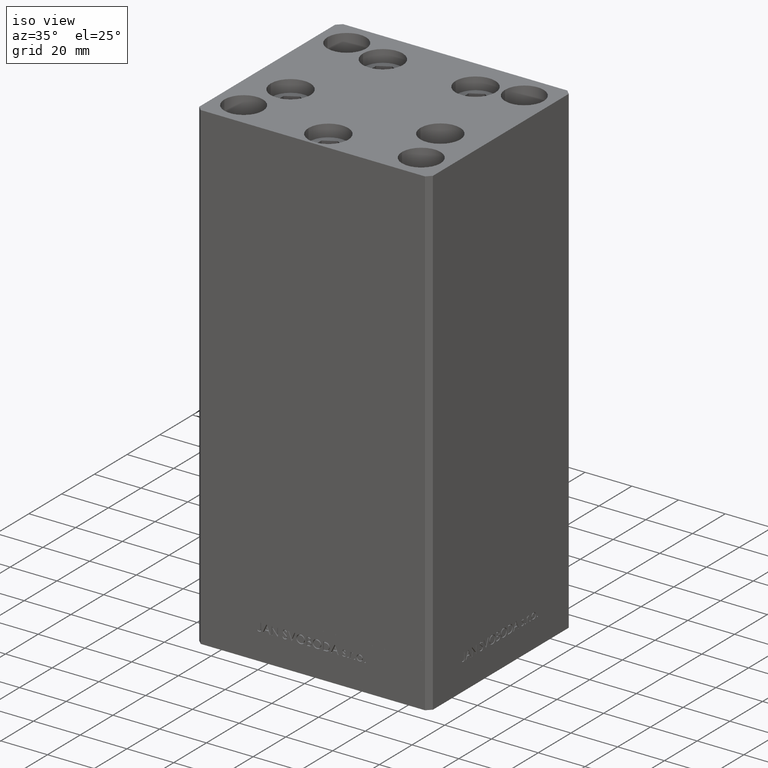
[diagram: clean part render]
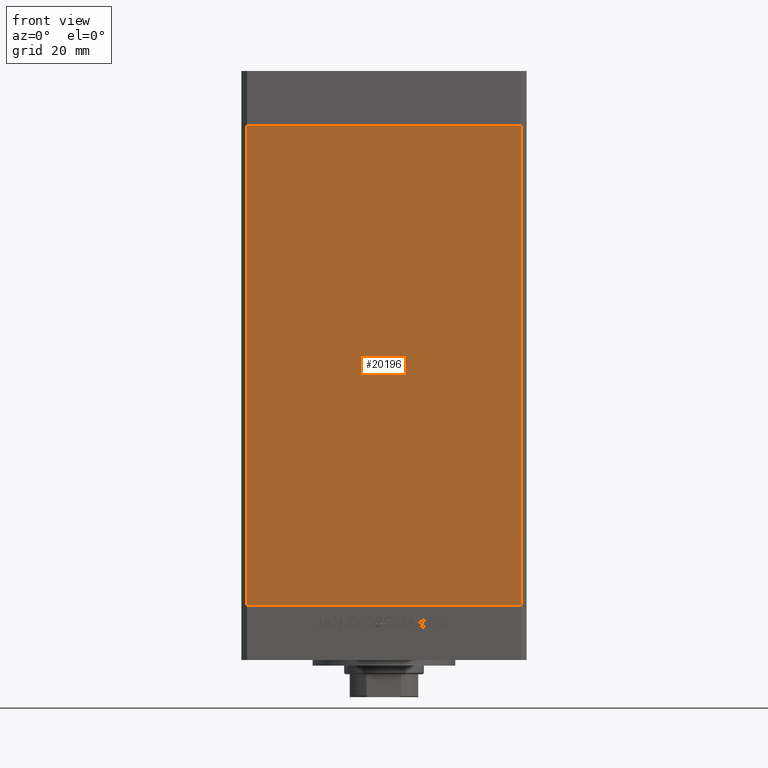
[diagram: tour spotlight — one face highlighted and labeled with its STEP entity id]
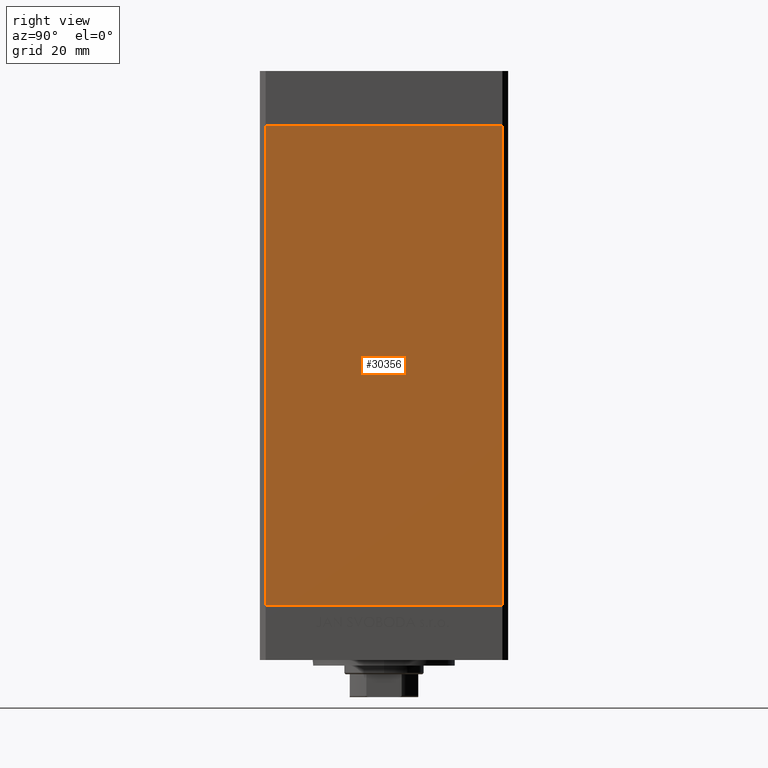
[diagram: tour spotlight — one face highlighted and labeled with its STEP entity id]
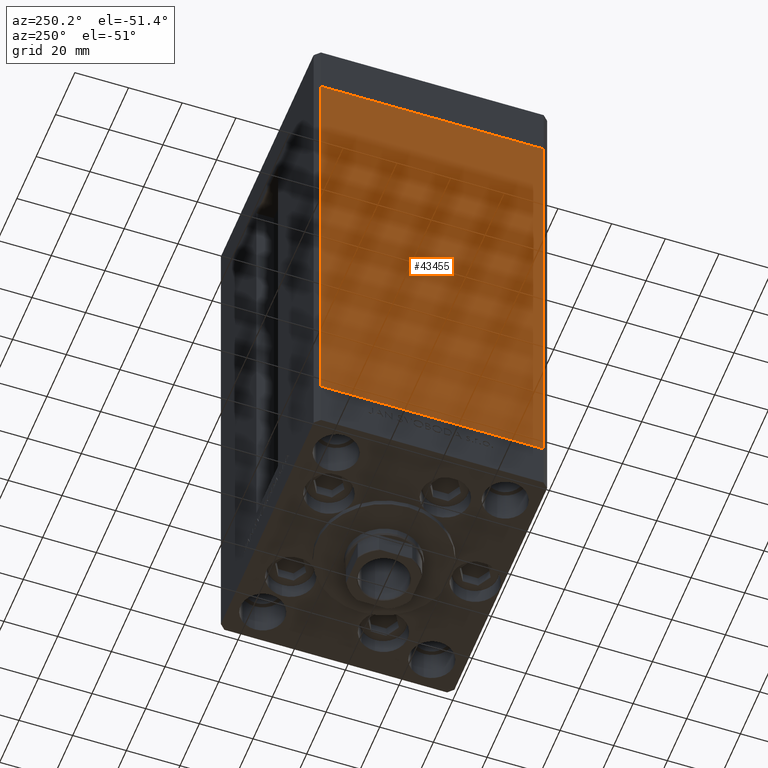
[diagram: tour spotlight — one face highlighted and labeled with its STEP entity id]
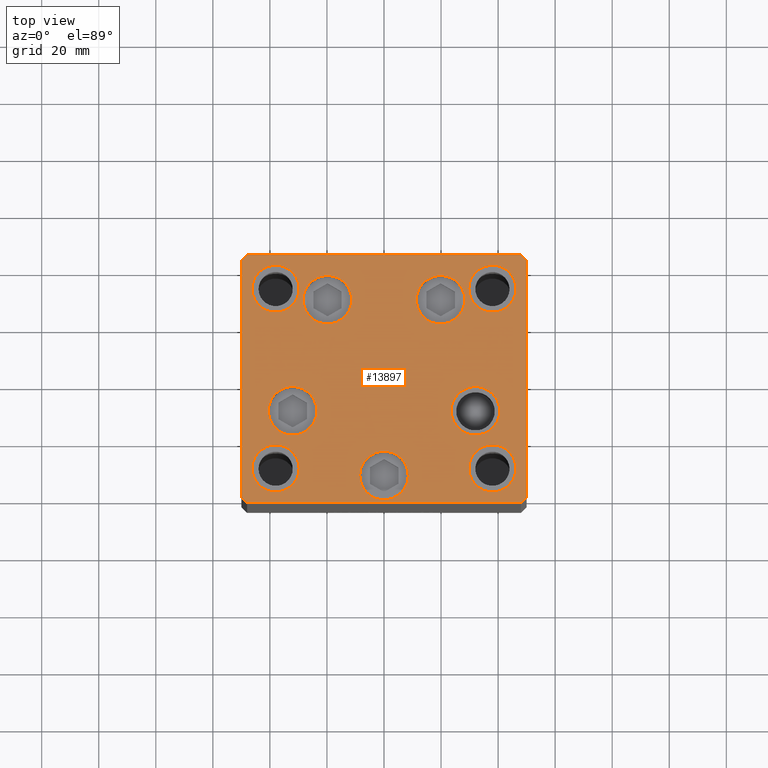
[diagram: tour spotlight — one face highlighted and labeled with its STEP entity id]
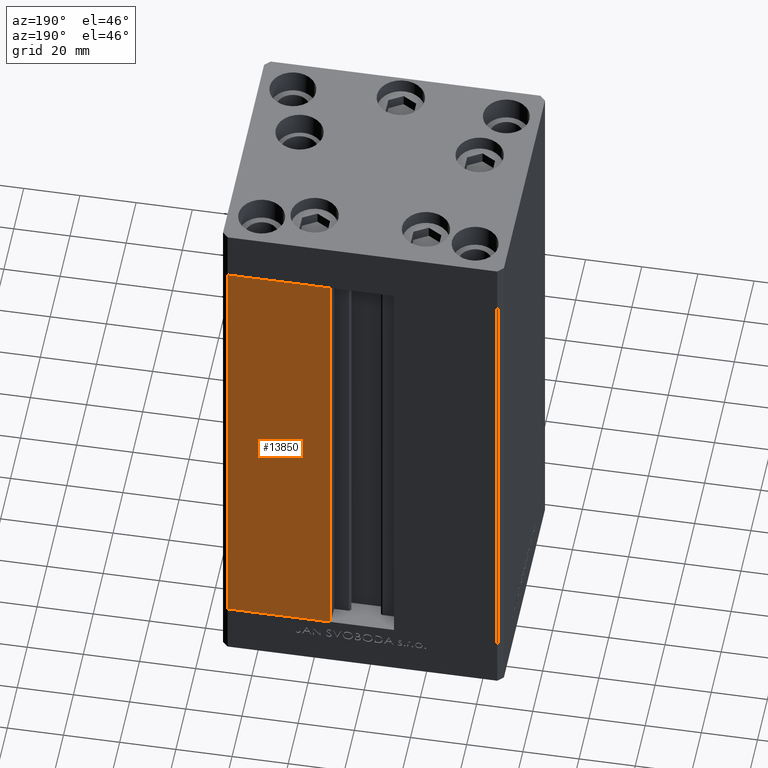
[diagram: tour spotlight — one face highlighted and labeled with its STEP entity id]
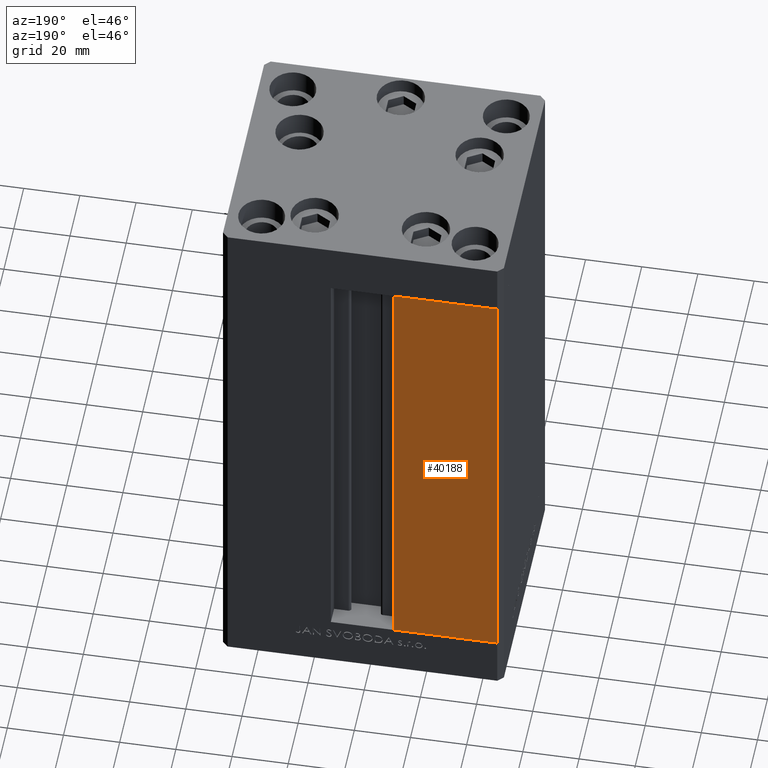
[diagram: tour spotlight — one face highlighted and labeled with its STEP entity id]
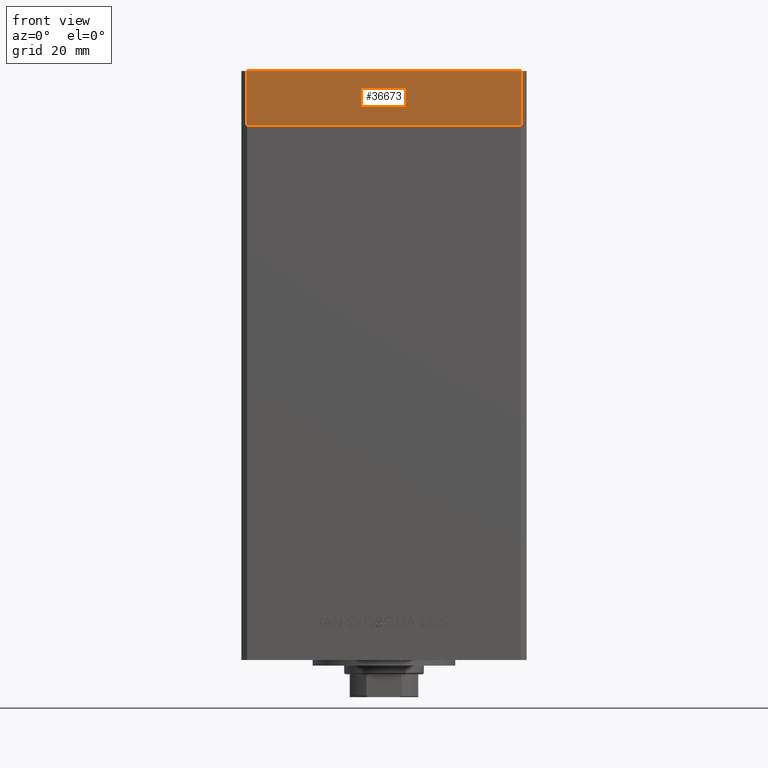
[diagram: tour spotlight — one face highlighted and labeled with its STEP entity id]
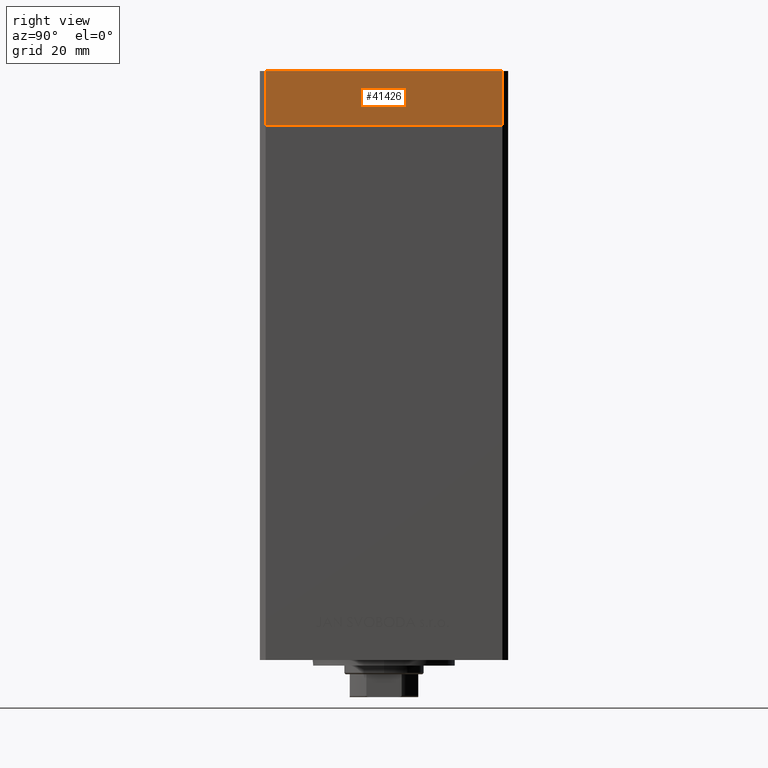
[diagram: tour spotlight — one face highlighted and labeled with its STEP entity id]
A machine part: a face-by-face anatomy tour. The part has 1164 B-rep faces; the first image is the clean iso view, then the 8 largest visible faces are spotlighted one at a time (largest first), each with its STEP entity span.

Face 1 — front view, entity #20196. In plain terms, the highlighted planar face has unit normal (0, 1, 0).
Definition (entity closure, byte-faithful):
#523 = CARTESIAN_POINT ( 'NONE',  ( -47.99999999999998579, -43.50000000000000000, 168.5000000000000000 ) ) ;
#609 = EDGE_CURVE ( 'NONE', #43587, #37930, #47816, .T. ) ;
#1003 = VECTOR ( 'NONE', #24720, 1000.000000000000000 ) ;
#2142 = CARTESIAN_POINT ( 'NONE',  ( -47.99999999999998579, -43.50000000000000000, 0.000000000000000000 ) ) ;
#4017 = DIRECTION ( 'NONE',  ( 1.000000000000000000, 0.000000000000000000, 0.000000000000000000 ) ) ;
#6775 = FACE_OUTER_BOUND ( 'NONE', #27543, .T. ) ;
#10970 = ORIENTED_EDGE ( 'NONE', *, *, #33616, .T. ) ;
#11225 = CARTESIAN_POINT ( 'NONE',  ( -47.99999999999998579, -43.50000000000000000, 168.5000000000000000 ) ) ;
#11700 = EDGE_CURVE ( 'NONE', #20813, #47953, #26405, .T. ) ;
#12907 = CARTESIAN_POINT ( 'NONE',  ( 47.99999999999998579, -43.50000000000000000, 168.5000000000000000 ) ) ;
#16608 = VECTOR ( 'NONE', #25529, 1000.000000000000000 ) ;
#16834 = ORIENTED_EDGE ( 'NONE', *, *, #609, .F. ) ;
#20196 = ADVANCED_FACE ( 'NONE', ( #6775 ), #48785, .F. ) ;
#20813 = VERTEX_POINT ( 'NONE', #38221 ) ;
#23930 = VECTOR ( 'NONE', #4017, 1000.000000000000000 ) ;
#24720 = DIRECTION ( 'NONE',  ( -0.000000000000000000, -0.000000000000000000, -1.000000000000000000 ) ) ;
#25529 = DIRECTION ( 'NONE',  ( 1.000000000000000000, 0.000000000000000000, 0.000000000000000000 ) ) ;
#26405 = LINE ( 'NONE', #45526, #31438 ) ;
#27543 = EDGE_LOOP ( 'NONE', ( #10970, #16834, #35556, #31332 ) ) ;
#29760 = AXIS2_PLACEMENT_3D ( 'NONE', #11225, #33151, #37127 ) ;
#31332 = ORIENTED_EDGE ( 'NONE', *, *, #11700, .T. ) ;
#31438 = VECTOR ( 'NONE', #45044, 1000.000000000000000 ) ;
#32241 = LINE ( 'NONE', #2142, #16608 ) ;
#32662 = CARTESIAN_POINT ( 'NONE',  ( 47.99999999999998579, -43.50000000000000000, 168.5000000000000000 ) ) ;
#33151 = DIRECTION ( 'NONE',  ( 0.000000000000000000, 1.000000000000000000, 0.000000000000000000 ) ) ;
#33616 = EDGE_CURVE ( 'NONE', #47953, #37930, #32241, .T. ) ;
#35556 = ORIENTED_EDGE ( 'NONE', *, *, #40240, .F. ) ;
#37127 = DIRECTION ( 'NONE',  ( 0.000000000000000000, -0.000000000000000000, 1.000000000000000000 ) ) ;
#37930 = VERTEX_POINT ( 'NONE', #37949 ) ;
#37949 = CARTESIAN_POINT ( 'NONE',  ( 47.99999999999998579, -43.50000000000000000, 0.000000000000000000 ) ) ;
#38221 = CARTESIAN_POINT ( 'NONE',  ( -47.99999999999998579, -43.50000000000000000, 168.5000000000000000 ) ) ;
#38336 = CARTESIAN_POINT ( 'NONE',  ( -47.99999999999998579, -43.50000000000000000, 0.000000000000000000 ) ) ;
#40240 = EDGE_CURVE ( 'NONE', #20813, #43587, #45300, .T. ) ;
#43587 = VERTEX_POINT ( 'NONE', #12907 ) ;
#45044 = DIRECTION ( 'NONE',  ( -0.000000000000000000, -0.000000000000000000, -1.000000000000000000 ) ) ;
#45300 = LINE ( 'NONE', #523, #23930 ) ;
#45526 = CARTESIAN_POINT ( 'NONE',  ( -47.99999999999998579, -43.50000000000000000, 168.5000000000000000 ) ) ;
#47816 = LINE ( 'NONE', #32662, #1003 ) ;
#47953 = VERTEX_POINT ( 'NONE', #38336 ) ;
#48785 = PLANE ( 'NONE',  #29760 ) ;

Face 2 — right view, entity #30356. In plain terms, the highlighted planar face has unit normal (1, -0, 0).
Definition (entity closure, byte-faithful):
#678 = DIRECTION ( 'NONE',  ( -3.344045254895050973E-16, -1.000000000000000000, 0.000000000000000000 ) ) ;
#1245 = ORIENTED_EDGE ( 'NONE', *, *, #46474, .F. ) ;
#1932 = VECTOR ( 'NONE', #32266, 1000.000000000000000 ) ;
#3344 = LINE ( 'NONE', #18522, #38434 ) ;
#3359 = EDGE_CURVE ( 'NONE', #24925, #27620, #3344, .T. ) ;
#3855 = DIRECTION ( 'NONE',  ( 3.344045254895050973E-16, 1.000000000000000000, 0.000000000000000000 ) ) ;
#4100 = CARTESIAN_POINT ( 'NONE',  ( 50.00000000000001421, 41.49999999999999289, 168.5000000000000000 ) ) ;
#4712 = VECTOR ( 'NONE', #678, 1000.000000000000000 ) ;
#5897 = CARTESIAN_POINT ( 'NONE',  ( 50.00000000000001421, 41.49999999999999289, 0.000000000000000000 ) ) ;
#7913 = EDGE_CURVE ( 'NONE', #12113, #27620, #39224, .T. ) ;
#8588 = LINE ( 'NONE', #23056, #43345 ) ;
#12113 = VERTEX_POINT ( 'NONE', #25561 ) ;
#14766 = VERTEX_POINT ( 'NONE', #41455 ) ;
#15561 = CARTESIAN_POINT ( 'NONE',  ( 49.99999999999998579, -41.49999999999999289, 0.000000000000000000 ) ) ;
#18522 = CARTESIAN_POINT ( 'NONE',  ( 49.99999999999998579, -41.49999999999999289, 168.5000000000000000 ) ) ;
#18792 = PLANE ( 'NONE',  #42768 ) ;
#19348 = LINE ( 'NONE', #34028, #4712 ) ;
#22061 = EDGE_LOOP ( 'NONE', ( #41025, #1245, #27404, #43865 ) ) ;
#23056 = CARTESIAN_POINT ( 'NONE',  ( 50.00000000000001421, 41.49999999999999289, 168.5000000000000000 ) ) ;
#24925 = VERTEX_POINT ( 'NONE', #33565 ) ;
#25561 = CARTESIAN_POINT ( 'NONE',  ( 50.00000000000001421, 41.49999999999999289, 0.000000000000000000 ) ) ;
#26503 = DIRECTION ( 'NONE',  ( 1.000000000000000000, -3.344045254895050973E-16, 0.000000000000000000 ) ) ;
#27404 = ORIENTED_EDGE ( 'NONE', *, *, #34745, .T. ) ;
#27620 = VERTEX_POINT ( 'NONE', #15561 ) ;
#30356 = ADVANCED_FACE ( 'NONE', ( #41651 ), #18792, .T. ) ;
#30991 = DIRECTION ( 'NONE',  ( -0.000000000000000000, -0.000000000000000000, -1.000000000000000000 ) ) ;
#32266 = DIRECTION ( 'NONE',  ( -3.344045254895050973E-16, -1.000000000000000000, 0.000000000000000000 ) ) ;
#33565 = CARTESIAN_POINT ( 'NONE',  ( 49.99999999999998579, -41.49999999999999289, 168.5000000000000000 ) ) ;
#34028 = CARTESIAN_POINT ( 'NONE',  ( 50.00000000000001421, 41.49999999999999289, 168.5000000000000000 ) ) ;
#34745 = EDGE_CURVE ( 'NONE', #14766, #24925, #19348, .T. ) ;
#38434 = VECTOR ( 'NONE', #47935, 1000.000000000000000 ) ;
#39224 = LINE ( 'NONE', #5897, #1932 ) ;
#41025 = ORIENTED_EDGE ( 'NONE', *, *, #7913, .F. ) ;
#41455 = CARTESIAN_POINT ( 'NONE',  ( 50.00000000000001421, 41.49999999999999289, 168.5000000000000000 ) ) ;
#41651 = FACE_OUTER_BOUND ( 'NONE', #22061, .T. ) ;
#42768 = AXIS2_PLACEMENT_3D ( 'NONE', #4100, #26503, #3855 ) ;
#43345 = VECTOR ( 'NONE', #30991, 1000.000000000000000 ) ;
#43865 = ORIENTED_EDGE ( 'NONE', *, *, #3359, .T. ) ;
#46474 = EDGE_CURVE ( 'NONE', #14766, #12113, #8588, .T. ) ;
#47935 = DIRECTION ( 'NONE',  ( -0.000000000000000000, -0.000000000000000000, -1.000000000000000000 ) ) ;

Face 3 — auxiliary view, entity #43455. In plain terms, the highlighted planar face has unit normal (1, 0, 0).
Definition (entity closure, byte-faithful):
#1145 = CARTESIAN_POINT ( 'NONE',  ( -50.00000000000001421, 41.49999999999999289, 168.5000000000000000 ) ) ;
#2916 = EDGE_CURVE ( 'NONE', #30149, #10781, #37295, .T. ) ;
#3449 = EDGE_CURVE ( 'NONE', #28960, #45384, #26487, .T. ) ;
#3845 = DIRECTION ( 'NONE',  ( 3.344045254895050973E-16, -1.000000000000000000, 0.000000000000000000 ) ) ;
#9721 = CARTESIAN_POINT ( 'NONE',  ( -50.00000000000001421, 41.49999999999999289, 168.5000000000000000 ) ) ;
#10624 = VECTOR ( 'NONE', #17911, 1000.000000000000000 ) ;
#10781 = VERTEX_POINT ( 'NONE', #44549 ) ;
#13700 = DIRECTION ( 'NONE',  ( -0.000000000000000000, -0.000000000000000000, -1.000000000000000000 ) ) ;
#14527 = CARTESIAN_POINT ( 'NONE',  ( -49.99999999999998579, -41.49999999999999289, 0.000000000000000000 ) ) ;
#14758 = DIRECTION ( 'NONE',  ( 1.000000000000000000, 3.344045254895050973E-16, -0.000000000000000000 ) ) ;
#15449 = CARTESIAN_POINT ( 'NONE',  ( -50.00000000000001421, 41.49999999999999289, 0.000000000000000000 ) ) ;
#17911 = DIRECTION ( 'NONE',  ( 3.344045254895050973E-16, -1.000000000000000000, 0.000000000000000000 ) ) ;
#18217 = VECTOR ( 'NONE', #28156, 1000.000000000000000 ) ;
#18393 = CARTESIAN_POINT ( 'NONE',  ( -50.00000000000001421, 41.49999999999999289, 168.5000000000000000 ) ) ;
#19366 = ORIENTED_EDGE ( 'NONE', *, *, #2916, .F. ) ;
#20865 = AXIS2_PLACEMENT_3D ( 'NONE', #22483, #14758, #29949 ) ;
#21191 = LINE ( 'NONE', #9721, #18217 ) ;
#22476 = VECTOR ( 'NONE', #3845, 1000.000000000000000 ) ;
#22483 = CARTESIAN_POINT ( 'NONE',  ( -50.00000000000001421, 41.49999999999999289, 168.5000000000000000 ) ) ;
#22594 = ORIENTED_EDGE ( 'NONE', *, *, #31763, .F. ) ;
#26487 = LINE ( 'NONE', #37916, #22476 ) ;
#28156 = DIRECTION ( 'NONE',  ( -0.000000000000000000, -0.000000000000000000, -1.000000000000000000 ) ) ;
#28530 = ORIENTED_EDGE ( 'NONE', *, *, #34187, .T. ) ;
#28661 = CARTESIAN_POINT ( 'NONE',  ( -49.99999999999998579, -41.49999999999999289, 168.5000000000000000 ) ) ;
#28960 = VERTEX_POINT ( 'NONE', #15449 ) ;
#29265 = VECTOR ( 'NONE', #13700, 1000.000000000000000 ) ;
#29949 = DIRECTION ( 'NONE',  ( -3.344045254895050973E-16, 1.000000000000000000, 0.000000000000000000 ) ) ;
#30149 = VERTEX_POINT ( 'NONE', #1145 ) ;
#31763 = EDGE_CURVE ( 'NONE', #10781, #45384, #44055, .T. ) ;
#34187 = EDGE_CURVE ( 'NONE', #30149, #28960, #21191, .T. ) ;
#37295 = LINE ( 'NONE', #18393, #10624 ) ;
#37638 = FACE_OUTER_BOUND ( 'NONE', #44845, .T. ) ;
#37916 = CARTESIAN_POINT ( 'NONE',  ( -50.00000000000001421, 41.49999999999999289, 0.000000000000000000 ) ) ;
#42596 = ORIENTED_EDGE ( 'NONE', *, *, #3449, .T. ) ;
#43455 = ADVANCED_FACE ( 'NONE', ( #37638 ), #48820, .F. ) ;
#44055 = LINE ( 'NONE', #28661, #29265 ) ;
#44549 = CARTESIAN_POINT ( 'NONE',  ( -49.99999999999998579, -41.49999999999999289, 168.5000000000000000 ) ) ;
#44845 = EDGE_LOOP ( 'NONE', ( #42596, #22594, #19366, #28530 ) ) ;
#45384 = VERTEX_POINT ( 'NONE', #14527 ) ;
#48820 = PLANE ( 'NONE',  #20865 ) ;

Face 4 — top view, entity #13897. In plain terms, the highlighted planar face has unit normal (0, 0, 1).
Definition (entity closure, byte-faithful):
#158 = DIRECTION ( 'NONE',  ( 0.000000000000000000, -0.000000000000000000, -1.000000000000000000 ) ) ;
#517 = AXIS2_PLACEMENT_3D ( 'NONE', #46884, #24767, #12800 ) ;
#829 = CARTESIAN_POINT ( 'NONE',  ( 4.163799117101000559E-15, -34.00000000000000000, 0.000000000000000000 ) ) ;
#877 = CARTESIAN_POINT ( 'NONE',  ( 49.99999999999992184, 41.49999999999998579, 0.000000000000000000 ) ) ;
#1180 = VERTEX_POINT ( 'NONE', #41403 ) ;
#1581 = CARTESIAN_POINT ( 'NONE',  ( -48.00000000000000711, 43.49999999999996447, 0.000000000000000000 ) ) ;
#2158 = EDGE_LOOP ( 'NONE', ( #28490, #27577 ) ) ;
#2248 = CARTESIAN_POINT ( 'NONE',  ( 19.82068048781373193, 27.62500000000000000, 0.000000000000000000 ) ) ;
#2767 = DIRECTION ( 'NONE',  ( 0.000000000000000000, -0.000000000000000000, -1.000000000000000000 ) ) ;
#2780 = ORIENTED_EDGE ( 'NONE', *, *, #40183, .T. ) ;
#2986 = DIRECTION ( 'NONE',  ( 0.000000000000000000, -0.000000000000000000, -1.000000000000000000 ) ) ;
#3050 = LINE ( 'NONE', #7505, #26634 ) ;
#3119 = CIRCLE ( 'NONE', #31695, 8.500000000000000000 ) ;
#3150 = ORIENTED_EDGE ( 'NONE', *, *, #19933, .T. ) ;
#3293 = CARTESIAN_POINT ( 'NONE',  ( -19.82068048781373903, 27.62499999999999645, 0.000000000000000000 ) ) ;
#3321 = VERTEX_POINT ( 'NONE', #22264 ) ;
#3460 = LINE ( 'NONE', #44266, #44833 ) ;
#4138 = VECTOR ( 'NONE', #34815, 1000.000000000000000 ) ;
#4278 = VERTEX_POINT ( 'NONE', #9350 ) ;
#4383 = AXIS2_PLACEMENT_3D ( 'NONE', #31913, #47066, #21478 ) ;
#4471 = VERTEX_POINT ( 'NONE', #37925 ) ;
#4742 = AXIS2_PLACEMENT_3D ( 'NONE', #44242, #21130, #36294 ) ;
#4743 = DIRECTION ( 'NONE',  ( 0.000000000000000000, 0.000000000000000000, 1.000000000000000000 ) ) ;
#4777 = CIRCLE ( 'NONE', #4742, 8.500000000000000000 ) ;
#4928 = ORIENTED_EDGE ( 'NONE', *, *, #19378, .F. ) ;
#5133 = DIRECTION ( 'NONE',  ( 0.000000000000000000, 0.000000000000000000, 1.000000000000000000 ) ) ;
#5180 = CARTESIAN_POINT ( 'NONE',  ( -47.99999999999999289, -43.50000000000001421, 0.000000000000000000 ) ) ;
#5205 = EDGE_CURVE ( 'NONE', #41665, #37197, #5565, .T. ) ;
#5248 = AXIS2_PLACEMENT_3D ( 'NONE', #31484, #158, #8353 ) ;
#5320 = EDGE_CURVE ( 'NONE', #37197, #14313, #15966, .T. ) ;
#5385 = VERTEX_POINT ( 'NONE', #27914 ) ;
#5412 = DIRECTION ( 'NONE',  ( 0.000000000000000000, 0.000000000000000000, 1.000000000000000000 ) ) ;
#5415 = ORIENTED_EDGE ( 'NONE', *, *, #35315, .F. ) ;
#5565 = LINE ( 'NONE', #1581, #12921 ) ;
#5665 = CIRCLE ( 'NONE', #19986, 8.250000000000000000 ) ;
#6350 = CARTESIAN_POINT ( 'NONE',  ( -50.00000000000000000, -41.50000000000000000, 0.000000000000000000 ) ) ;
#6704 = CIRCLE ( 'NONE', #47203, 8.250000000000000000 ) ;
#6850 = DIRECTION ( 'NONE',  ( 0.000000000000000000, -0.000000000000000000, -1.000000000000000000 ) ) ;
#7016 = VERTEX_POINT ( 'NONE', #45705 ) ;
#7193 = PLANE ( 'NONE',  #18812 ) ;
#7267 = CIRCLE ( 'NONE', #13607, 8.500000000000000000 ) ;
#7464 = ORIENTED_EDGE ( 'NONE', *, *, #9875, .T. ) ;
#7505 = CARTESIAN_POINT ( 'NONE',  ( -50.00000000000000000, -41.50000000000000000, 0.000000000000000000 ) ) ;
#7684 = AXIS2_PLACEMENT_3D ( 'NONE', #13109, #8408, #39732 ) ;
#7703 = DIRECTION ( 'NONE',  ( 1.000000000000000000, 0.000000000000000000, 0.000000000000000000 ) ) ;
#7923 = VERTEX_POINT ( 'NONE', #8881 ) ;
#7925 = FACE_BOUND ( 'NONE', #26905, .T. ) ;
#7997 = DIRECTION ( 'NONE',  ( 1.000000000000000000, 0.000000000000000000, 0.000000000000000000 ) ) ;
#8353 = DIRECTION ( 'NONE',  ( 1.000000000000000000, 0.000000000000000000, 0.000000000000000000 ) ) ;
#8370 = CARTESIAN_POINT ( 'NONE',  ( -48.00000000000000711, 43.49999999999996447, 0.000000000000000000 ) ) ;
#8408 = DIRECTION ( 'NONE',  ( 0.000000000000000000, 0.000000000000000000, 1.000000000000000000 ) ) ;
#8614 = LINE ( 'NONE', #15591, #11293 ) ;
#8741 = EDGE_CURVE ( 'NONE', #5385, #7923, #47225, .T. ) ;
#8781 = CARTESIAN_POINT ( 'NONE',  ( -28.32068048781373903, 27.62499999999999645, 0.000000000000000000 ) ) ;
#8881 = CARTESIAN_POINT ( 'NONE',  ( 40.55550741379014568, -11.33333333333332860, 0.000000000000000000 ) ) ;
#8953 = VERTEX_POINT ( 'NONE', #33555 ) ;
#9036 = AXIS2_PLACEMENT_3D ( 'NONE', #34774, #27816, #42962 ) ;
#9350 = CARTESIAN_POINT ( 'NONE',  ( 28.32068048781373193, 27.62500000000000000, 0.000000000000000000 ) ) ;
#9390 = CARTESIAN_POINT ( 'NONE',  ( 38.00000000000000000, 31.49999999999999289, 0.000000000000000000 ) ) ;
#9663 = AXIS2_PLACEMENT_3D ( 'NONE', #3293, #18723, #7997 ) ;
#9796 = EDGE_CURVE ( 'NONE', #47785, #4471, #36953, .T. ) ;
#9854 = EDGE_CURVE ( 'NONE', #46460, #43922, #29184, .T. ) ;
#9875 = EDGE_CURVE ( 'NONE', #14313, #10128, #3050, .T. ) ;
#10128 = VERTEX_POINT ( 'NONE', #5180 ) ;
#11293 = VECTOR ( 'NONE', #23810, 1000.000000000000000 ) ;
#11644 = FACE_BOUND ( 'NONE', #44965, .T. ) ;
#11672 = VERTEX_POINT ( 'NONE', #14700 ) ;
#11889 = DIRECTION ( 'NONE',  ( 1.000000000000000000, 0.000000000000000000, 0.000000000000000000 ) ) ;
#11944 = DIRECTION ( 'NONE',  ( 1.000000000000000000, 0.000000000000000000, 0.000000000000000000 ) ) ;
#12034 = EDGE_CURVE ( 'NONE', #20579, #36024, #37790, .T. ) ;
#12128 = FACE_BOUND ( 'NONE', #48755, .T. ) ;
#12154 = LINE ( 'NONE', #19652, #4138 ) ;
#12800 = DIRECTION ( 'NONE',  ( 1.000000000000000000, 0.000000000000000000, 0.000000000000000000 ) ) ;
#12921 = VECTOR ( 'NONE', #43364, 1000.000000000000000 ) ;
#13109 = CARTESIAN_POINT ( 'NONE',  ( -37.99999999999999289, -31.50000000000000000, 0.000000000000000000 ) ) ;
#13251 = CIRCLE ( 'NONE', #7684, 8.250000000000000000 ) ;
#13607 = AXIS2_PLACEMENT_3D ( 'NONE', #30153, #15448, #26920 ) ;
#13897 = ADVANCED_FACE ( 'NONE', ( #34296, #41268, #34059, #31050, #12128, #27091, #48960, #11644, #7925, #45974 ), #7193, .T. ) ;
#13971 = EDGE_CURVE ( 'NONE', #28676, #3321, #13251, .T. ) ;
#14313 = VERTEX_POINT ( 'NONE', #6350 ) ;
#14677 = DIRECTION ( 'NONE',  ( 1.000000000000000000, 0.000000000000000000, 0.000000000000000000 ) ) ;
#14700 = CARTESIAN_POINT ( 'NONE',  ( 11.32068048781373015, 27.62500000000000000, 0.000000000000000000 ) ) ;
#14896 = CIRCLE ( 'NONE', #22089, 8.250000000000000000 ) ;
#15167 = CARTESIAN_POINT ( 'NONE',  ( 46.25000000000000000, -31.49999999999999289, 0.000000000000000000 ) ) ;
#15188 = CARTESIAN_POINT ( 'NONE',  ( -37.99999999999999289, -31.50000000000000000, 0.000000000000000000 ) ) ;
#15448 = DIRECTION ( 'NONE',  ( 0.000000000000000000, -0.000000000000000000, -1.000000000000000000 ) ) ;
#15591 = CARTESIAN_POINT ( 'NONE',  ( 47.99999999999999289, -43.50000000000001421, 0.000000000000000000 ) ) ;
#15966 = LINE ( 'NONE', #30411, #40747 ) ;
#16007 = DIRECTION ( 'NONE',  ( 1.000000000000000000, 0.000000000000000000, 0.000000000000000000 ) ) ;
#16204 = DIRECTION ( 'NONE',  ( 8.360113137237628665E-17, -1.000000000000000000, 0.000000000000000000 ) ) ;
#16986 = CARTESIAN_POINT ( 'NONE',  ( -46.24999999999999289, -31.50000000000000000, 0.000000000000000000 ) ) ;
#17014 = ORIENTED_EDGE ( 'NONE', *, *, #5205, .T. ) ;
#17205 = EDGE_LOOP ( 'NONE', ( #44477, #37494 ) ) ;
#17537 = CARTESIAN_POINT ( 'NONE',  ( 47.99999999999990763, 43.50000000000000000, 0.000000000000000000 ) ) ;
#17687 = EDGE_CURVE ( 'NONE', #47411, #35374, #17799, .T. ) ;
#17799 = CIRCLE ( 'NONE', #9036, 8.250000000000000000 ) ;
#17856 = AXIS2_PLACEMENT_3D ( 'NONE', #19191, #22428, #11944 ) ;
#17908 = DIRECTION ( 'NONE',  ( 1.000000000000000000, 0.000000000000000000, 0.000000000000000000 ) ) ;
#18723 = DIRECTION ( 'NONE',  ( 0.000000000000000000, -0.000000000000000000, -1.000000000000000000 ) ) ;
#18812 = AXIS2_PLACEMENT_3D ( 'NONE', #23112, #38028, #11889 ) ;
#18836 = EDGE_LOOP ( 'NONE', ( #7464, #30418, #23453, #38864, #41616, #21018, #17014, #28918 ) ) ;
#18937 = DIRECTION ( 'NONE',  ( 0.000000000000000000, 0.000000000000000000, 1.000000000000000000 ) ) ;
#19191 = CARTESIAN_POINT ( 'NONE',  ( 32.05550741379015278, -11.33333333333333037, 0.000000000000000000 ) ) ;
#19378 = EDGE_CURVE ( 'NONE', #25315, #30045, #6704, .T. ) ;
#19548 = EDGE_CURVE ( 'NONE', #10128, #20749, #3460, .T. ) ;
#19652 = CARTESIAN_POINT ( 'NONE',  ( 50.00000000000000000, -41.49999999999999289, 0.000000000000000000 ) ) ;
#19933 = EDGE_CURVE ( 'NONE', #40291, #7016, #20245, .T. ) ;
#19986 = AXIS2_PLACEMENT_3D ( 'NONE', #24400, #27383, #42288 ) ;
#20245 = CIRCLE ( 'NONE', #27377, 8.500000000000000000 ) ;
#20579 = VERTEX_POINT ( 'NONE', #35531 ) ;
#20628 = ORIENTED_EDGE ( 'NONE', *, *, #47437, .T. ) ;
#20749 = VERTEX_POINT ( 'NONE', #26069 ) ;
#21018 = ORIENTED_EDGE ( 'NONE', *, *, #38898, .T. ) ;
#21130 = DIRECTION ( 'NONE',  ( 0.000000000000000000, -0.000000000000000000, -1.000000000000000000 ) ) ;
#21478 = DIRECTION ( 'NONE',  ( 1.000000000000000000, 0.000000000000000000, 0.000000000000000000 ) ) ;
#21790 = DIRECTION ( 'NONE',  ( 1.000000000000000000, 0.000000000000000000, 0.000000000000000000 ) ) ;
#22089 = AXIS2_PLACEMENT_3D ( 'NONE', #15188, #18937, #42043 ) ;
#22224 = AXIS2_PLACEMENT_3D ( 'NONE', #39199, #5133, #7703 ) ;
#22264 = CARTESIAN_POINT ( 'NONE',  ( -29.74999999999999289, -31.50000000000000000, 0.000000000000000000 ) ) ;
#22428 = DIRECTION ( 'NONE',  ( 0.000000000000000000, -0.000000000000000000, -1.000000000000000000 ) ) ;
#23112 = CARTESIAN_POINT ( 'NONE',  ( 0.000000000000000000, 0.000000000000000000, 0.000000000000000000 ) ) ;
#23341 = VERTEX_POINT ( 'NONE', #26271 ) ;
#23453 = ORIENTED_EDGE ( 'NONE', *, *, #41701, .T. ) ;
#23810 = DIRECTION ( 'NONE',  ( 0.7071067811865463515, 0.7071067811865487940, 0.000000000000000000 ) ) ;
#24081 = EDGE_CURVE ( 'NONE', #35374, #47411, #39432, .T. ) ;
#24400 = CARTESIAN_POINT ( 'NONE',  ( -38.00000000000000000, 31.50000000000000000, 0.000000000000000000 ) ) ;
#24582 = DIRECTION ( 'NONE',  ( 1.000000000000000000, 0.000000000000000000, 0.000000000000000000 ) ) ;
#24766 = EDGE_CURVE ( 'NONE', #11672, #4278, #45006, .T. ) ;
#24767 = DIRECTION ( 'NONE',  ( 0.000000000000000000, 0.000000000000000000, 1.000000000000000000 ) ) ;
#24864 = EDGE_LOOP ( 'NONE', ( #39991, #39012 ) ) ;
#25154 = CIRCLE ( 'NONE', #5248, 8.500000000000000000 ) ;
#25315 = VERTEX_POINT ( 'NONE', #36206 ) ;
#25502 = DIRECTION ( 'NONE',  ( -1.000000000000000000, -3.614007241618350743E-16, 0.000000000000000000 ) ) ;
#26069 = CARTESIAN_POINT ( 'NONE',  ( 47.99999999999999289, -43.50000000000001421, 0.000000000000000000 ) ) ;
#26136 = ORIENTED_EDGE ( 'NONE', *, *, #36452, .T. ) ;
#26271 = CARTESIAN_POINT ( 'NONE',  ( -40.55550741379015278, -11.33333333333333925, 0.000000000000000000 ) ) ;
#26462 = ORIENTED_EDGE ( 'NONE', *, *, #12034, .F. ) ;
#26634 = VECTOR ( 'NONE', #45303, 1000.000000000000114 ) ;
#26663 = CARTESIAN_POINT ( 'NONE',  ( -38.00000000000000000, 31.50000000000000000, 0.000000000000000000 ) ) ;
#26797 = CARTESIAN_POINT ( 'NONE',  ( 29.74999999999999645, -31.49999999999999289, 0.000000000000000000 ) ) ;
#26905 = EDGE_LOOP ( 'NONE', ( #5415, #26462 ) ) ;
#26920 = DIRECTION ( 'NONE',  ( 1.000000000000000000, 0.000000000000000000, 0.000000000000000000 ) ) ;
#27060 = EDGE_CURVE ( 'NONE', #3321, #28676, #14896, .T. ) ;
#27091 = FACE_BOUND ( 'NONE', #29954, .T. ) ;
#27377 = AXIS2_PLACEMENT_3D ( 'NONE', #829, #30941, #16007 ) ;
#27383 = DIRECTION ( 'NONE',  ( 0.000000000000000000, 0.000000000000000000, 1.000000000000000000 ) ) ;
#27577 = ORIENTED_EDGE ( 'NONE', *, *, #34241, .T. ) ;
#27816 = DIRECTION ( 'NONE',  ( 0.000000000000000000, 0.000000000000000000, 1.000000000000000000 ) ) ;
#27819 = CARTESIAN_POINT ( 'NONE',  ( 47.99999999999990763, 43.50000000000000000, 0.000000000000000000 ) ) ;
#27914 = CARTESIAN_POINT ( 'NONE',  ( 23.55550741379015633, -11.33333333333333037, 0.000000000000000000 ) ) ;
#28172 = ORIENTED_EDGE ( 'NONE', *, *, #39396, .F. ) ;
#28224 = VECTOR ( 'NONE', #44333, 1000.000000000000114 ) ;
#28445 = CARTESIAN_POINT ( 'NONE',  ( 49.99999999999992184, 41.49999999999998579, 0.000000000000000000 ) ) ;
#28490 = ORIENTED_EDGE ( 'NONE', *, *, #24766, .T. ) ;
#28676 = VERTEX_POINT ( 'NONE', #16986 ) ;
#28918 = ORIENTED_EDGE ( 'NONE', *, *, #5320, .T. ) ;
#29184 = LINE ( 'NONE', #28445, #28224 ) ;
#29363 = DIRECTION ( 'NONE',  ( 1.000000000000000000, 0.000000000000000000, 0.000000000000000000 ) ) ;
#29954 = EDGE_LOOP ( 'NONE', ( #45512, #32442 ) ) ;
#30045 = VERTEX_POINT ( 'NONE', #39447 ) ;
#30144 = CIRCLE ( 'NONE', #22224, 8.250000000000000000 ) ;
#30153 = CARTESIAN_POINT ( 'NONE',  ( -32.05550741379015278, -11.33333333333333925, 0.000000000000000000 ) ) ;
#30411 = CARTESIAN_POINT ( 'NONE',  ( -50.00000000000000711, 41.49999999999995026, 0.000000000000000000 ) ) ;
#30418 = ORIENTED_EDGE ( 'NONE', *, *, #19548, .T. ) ;
#30941 = DIRECTION ( 'NONE',  ( 0.000000000000000000, -0.000000000000000000, -1.000000000000000000 ) ) ;
#31050 = FACE_BOUND ( 'NONE', #44489, .T. ) ;
#31484 = CARTESIAN_POINT ( 'NONE',  ( -32.05550741379015278, -11.33333333333333925, 0.000000000000000000 ) ) ;
#31695 = AXIS2_PLACEMENT_3D ( 'NONE', #48503, #2767, #14677 ) ;
#31913 = CARTESIAN_POINT ( 'NONE',  ( -19.82068048781373903, 27.62499999999999645, 0.000000000000000000 ) ) ;
#32128 = CARTESIAN_POINT ( 'NONE',  ( 46.25000000000000000, 31.49999999999999289, 0.000000000000000000 ) ) ;
#32442 = ORIENTED_EDGE ( 'NONE', *, *, #17687, .F. ) ;
#33555 = CARTESIAN_POINT ( 'NONE',  ( 50.00000000000000000, -41.49999999999999289, 0.000000000000000000 ) ) ;
#34059 = FACE_BOUND ( 'NONE', #17205, .T. ) ;
#34241 = EDGE_CURVE ( 'NONE', #4278, #11672, #3119, .T. ) ;
#34296 = FACE_BOUND ( 'NONE', #45469, .T. ) ;
#34774 = CARTESIAN_POINT ( 'NONE',  ( 38.00000000000000000, -31.49999999999999289, 0.000000000000000000 ) ) ;
#34815 = DIRECTION ( 'NONE',  ( -1.003213576468515193E-15, 1.000000000000000000, 0.000000000000000000 ) ) ;
#35315 = EDGE_CURVE ( 'NONE', #36024, #20579, #30144, .T. ) ;
#35374 = VERTEX_POINT ( 'NONE', #15167 ) ;
#35508 = AXIS2_PLACEMENT_3D ( 'NONE', #2248, #2986, #29363 ) ;
#35531 = CARTESIAN_POINT ( 'NONE',  ( 29.74999999999999645, 31.49999999999999289, 0.000000000000000000 ) ) ;
#36024 = VERTEX_POINT ( 'NONE', #32128 ) ;
#36187 = LINE ( 'NONE', #17537, #44543 ) ;
#36206 = CARTESIAN_POINT ( 'NONE',  ( -29.75000000000000000, 31.50000000000000000, 0.000000000000000000 ) ) ;
#36294 = DIRECTION ( 'NONE',  ( 1.000000000000000000, 0.000000000000000000, 0.000000000000000000 ) ) ;
#36452 = EDGE_CURVE ( 'NONE', #7016, #40291, #4777, .T. ) ;
#36953 = CIRCLE ( 'NONE', #4383, 8.500000000000000000 ) ;
#37197 = VERTEX_POINT ( 'NONE', #41981 ) ;
#37494 = ORIENTED_EDGE ( 'NONE', *, *, #41877, .T. ) ;
#37790 = CIRCLE ( 'NONE', #38610, 8.250000000000000000 ) ;
#37925 = CARTESIAN_POINT ( 'NONE',  ( -11.32068048781373726, 27.62499999999999645, 0.000000000000000000 ) ) ;
#38028 = DIRECTION ( 'NONE',  ( -0.000000000000000000, 0.000000000000000000, 1.000000000000000000 ) ) ;
#38610 = AXIS2_PLACEMENT_3D ( 'NONE', #9390, #5412, #24582 ) ;
#38864 = ORIENTED_EDGE ( 'NONE', *, *, #42196, .T. ) ;
#38898 = EDGE_CURVE ( 'NONE', #43922, #41665, #36187, .T. ) ;
#39012 = ORIENTED_EDGE ( 'NONE', *, *, #13971, .F. ) ;
#39199 = CARTESIAN_POINT ( 'NONE',  ( 38.00000000000000000, 31.49999999999999289, 0.000000000000000000 ) ) ;
#39396 = EDGE_CURVE ( 'NONE', #30045, #25315, #5665, .T. ) ;
#39432 = CIRCLE ( 'NONE', #517, 8.250000000000000000 ) ;
#39447 = CARTESIAN_POINT ( 'NONE',  ( -46.25000000000000000, 31.50000000000000000, 0.000000000000000000 ) ) ;
#39732 = DIRECTION ( 'NONE',  ( 1.000000000000000000, 0.000000000000000000, 0.000000000000000000 ) ) ;
#39991 = ORIENTED_EDGE ( 'NONE', *, *, #27060, .F. ) ;
#40183 = EDGE_CURVE ( 'NONE', #23341, #1180, #7267, .T. ) ;
#40291 = VERTEX_POINT ( 'NONE', #46772 ) ;
#40676 = CIRCLE ( 'NONE', #42255, 8.499999999999992895 ) ;
#40747 = VECTOR ( 'NONE', #16204, 1000.000000000000000 ) ;
#41020 = EDGE_CURVE ( 'NONE', #4471, #47785, #42223, .T. ) ;
#41268 = FACE_BOUND ( 'NONE', #2158, .T. ) ;
#41403 = CARTESIAN_POINT ( 'NONE',  ( -23.55550741379015278, -11.33333333333333748, 0.000000000000000000 ) ) ;
#41616 = ORIENTED_EDGE ( 'NONE', *, *, #9854, .T. ) ;
#41665 = VERTEX_POINT ( 'NONE', #8370 ) ;
#41701 = EDGE_CURVE ( 'NONE', #20749, #8953, #8614, .T. ) ;
#41877 = EDGE_CURVE ( 'NONE', #7923, #5385, #40676, .T. ) ;
#41981 = CARTESIAN_POINT ( 'NONE',  ( -50.00000000000000711, 41.49999999999995026, 0.000000000000000000 ) ) ;
#42043 = DIRECTION ( 'NONE',  ( 1.000000000000000000, 0.000000000000000000, 0.000000000000000000 ) ) ;
#42196 = EDGE_CURVE ( 'NONE', #8953, #46460, #12154, .T. ) ;
#42223 = CIRCLE ( 'NONE', #9663, 8.500000000000000000 ) ;
#42255 = AXIS2_PLACEMENT_3D ( 'NONE', #45814, #6850, #21790 ) ;
#42288 = DIRECTION ( 'NONE',  ( 1.000000000000000000, 0.000000000000000000, 0.000000000000000000 ) ) ;
#42962 = DIRECTION ( 'NONE',  ( 1.000000000000000000, 0.000000000000000000, 0.000000000000000000 ) ) ;
#43364 = DIRECTION ( 'NONE',  ( -0.7071067811865463515, -0.7071067811865487940, 0.000000000000000000 ) ) ;
#43922 = VERTEX_POINT ( 'NONE', #27819 ) ;
#44242 = CARTESIAN_POINT ( 'NONE',  ( 4.163799117101000559E-15, -34.00000000000000000, 0.000000000000000000 ) ) ;
#44266 = CARTESIAN_POINT ( 'NONE',  ( -47.99999999999999289, -43.50000000000001421, 0.000000000000000000 ) ) ;
#44305 = ORIENTED_EDGE ( 'NONE', *, *, #9796, .T. ) ;
#44333 = DIRECTION ( 'NONE',  ( -0.7071067811865474617, 0.7071067811865474617, 0.000000000000000000 ) ) ;
#44477 = ORIENTED_EDGE ( 'NONE', *, *, #8741, .T. ) ;
#44489 = EDGE_LOOP ( 'NONE', ( #3150, #26136 ) ) ;
#44543 = VECTOR ( 'NONE', #25502, 1000.000000000000000 ) ;
#44721 = ORIENTED_EDGE ( 'NONE', *, *, #41020, .T. ) ;
#44833 = VECTOR ( 'NONE', #17908, 1000.000000000000000 ) ;
#44965 = EDGE_LOOP ( 'NONE', ( #4928, #28172 ) ) ;
#45006 = CIRCLE ( 'NONE', #35508, 8.500000000000000000 ) ;
#45303 = DIRECTION ( 'NONE',  ( 0.7071067811865474617, -0.7071067811865474617, 0.000000000000000000 ) ) ;
#45469 = EDGE_LOOP ( 'NONE', ( #44305, #44721 ) ) ;
#45512 = ORIENTED_EDGE ( 'NONE', *, *, #24081, .F. ) ;
#45705 = CARTESIAN_POINT ( 'NONE',  ( 8.500000000000003553, -34.00000000000000000, 0.000000000000000000 ) ) ;
#45784 = DIRECTION ( 'NONE',  ( 1.000000000000000000, 0.000000000000000000, 0.000000000000000000 ) ) ;
#45814 = CARTESIAN_POINT ( 'NONE',  ( 32.05550741379015278, -11.33333333333333037, 0.000000000000000000 ) ) ;
#45974 = FACE_OUTER_BOUND ( 'NONE', #18836, .T. ) ;
#46460 = VERTEX_POINT ( 'NONE', #877 ) ;
#46772 = CARTESIAN_POINT ( 'NONE',  ( -8.499999999999996447, -34.00000000000000000, 0.000000000000000000 ) ) ;
#46884 = CARTESIAN_POINT ( 'NONE',  ( 38.00000000000000000, -31.49999999999999289, 0.000000000000000000 ) ) ;
#47066 = DIRECTION ( 'NONE',  ( 0.000000000000000000, -0.000000000000000000, -1.000000000000000000 ) ) ;
#47203 = AXIS2_PLACEMENT_3D ( 'NONE', #26663, #4743, #45784 ) ;
#47225 = CIRCLE ( 'NONE', #17856, 8.499999999999992895 ) ;
#47411 = VERTEX_POINT ( 'NONE', #26797 ) ;
#47437 = EDGE_CURVE ( 'NONE', #1180, #23341, #25154, .T. ) ;
#47785 = VERTEX_POINT ( 'NONE', #8781 ) ;
#48503 = CARTESIAN_POINT ( 'NONE',  ( 19.82068048781373193, 27.62500000000000000, 0.000000000000000000 ) ) ;
#48755 = EDGE_LOOP ( 'NONE', ( #2780, #20628 ) ) ;
#48960 = FACE_BOUND ( 'NONE', #24864, .T. ) ;

Face 5 — auxiliary view, entity #13850. In plain terms, the highlighted planar face has unit normal (0, -1, 0).
Definition (entity closure, byte-faithful):
#266 = DIRECTION ( 'NONE',  ( -0.000000000000000000, -0.000000000000000000, -1.000000000000000000 ) ) ;
#2858 = CARTESIAN_POINT ( 'NONE',  ( -11.24999999999999822, 43.50000000000000000, 168.5000000000000000 ) ) ;
#3906 = LINE ( 'NONE', #22085, #37884 ) ;
#6133 = VERTEX_POINT ( 'NONE', #8869 ) ;
#6713 = CARTESIAN_POINT ( 'NONE',  ( 11.24999999999999822, 43.50000000000000000, 0.000000000000000000 ) ) ;
#6824 = LINE ( 'NONE', #2858, #19540 ) ;
#8493 = AXIS2_PLACEMENT_3D ( 'NONE', #14165, #44506, #10426 ) ;
#8620 = VECTOR ( 'NONE', #29672, 1000.000000000000000 ) ;
#8869 = CARTESIAN_POINT ( 'NONE',  ( 11.24999999999999112, 43.50000000000000000, 168.5000000000000000 ) ) ;
#10426 = DIRECTION ( 'NONE',  ( 0.000000000000000000, -0.000000000000000000, -1.000000000000000000 ) ) ;
#11113 = DIRECTION ( 'NONE',  ( -0.000000000000000000, -0.000000000000000000, 1.000000000000000000 ) ) ;
#11945 = LINE ( 'NONE', #26660, #24260 ) ;
#13850 = ADVANCED_FACE ( 'NONE', ( #40533 ), #33075, .F. ) ;
#14165 = CARTESIAN_POINT ( 'NONE',  ( -11.24999999999999822, 43.50000000000000000, 168.5000000000000000 ) ) ;
#15369 = EDGE_CURVE ( 'NONE', #29077, #25678, #41581, .T. ) ;
#19540 = VECTOR ( 'NONE', #37410, 1000.000000000000000 ) ;
#22085 = CARTESIAN_POINT ( 'NONE',  ( 11.24999999999999822, 43.50000000000000000, 0.000000000000000000 ) ) ;
#24260 = VECTOR ( 'NONE', #266, 1000.000000000000000 ) ;
#25678 = VERTEX_POINT ( 'NONE', #6713 ) ;
#26660 = CARTESIAN_POINT ( 'NONE',  ( 48.00000000000000711, 43.50000000000000000, 168.5000000000000000 ) ) ;
#29077 = VERTEX_POINT ( 'NONE', #42797 ) ;
#29672 = DIRECTION ( 'NONE',  ( -1.000000000000000000, 0.000000000000000000, 0.000000000000000000 ) ) ;
#32505 = VERTEX_POINT ( 'NONE', #42984 ) ;
#33075 = PLANE ( 'NONE',  #8493 ) ;
#34599 = ORIENTED_EDGE ( 'NONE', *, *, #15369, .T. ) ;
#37410 = DIRECTION ( 'NONE',  ( 1.000000000000000000, 0.000000000000000000, 0.000000000000000000 ) ) ;
#37884 = VECTOR ( 'NONE', #11113, 1000.000000000000000 ) ;
#38102 = CARTESIAN_POINT ( 'NONE',  ( -11.24999999999999822, 43.50000000000000000, 0.000000000000000000 ) ) ;
#40533 = FACE_OUTER_BOUND ( 'NONE', #45824, .T. ) ;
#41581 = LINE ( 'NONE', #38102, #8620 ) ;
#42716 = ORIENTED_EDGE ( 'NONE', *, *, #48596, .T. ) ;
#42797 = CARTESIAN_POINT ( 'NONE',  ( 48.00000000000000711, 43.50000000000000000, 0.000000000000000000 ) ) ;
#42984 = CARTESIAN_POINT ( 'NONE',  ( 48.00000000000000711, 43.50000000000000000, 168.5000000000000000 ) ) ;
#43444 = ORIENTED_EDGE ( 'NONE', *, *, #46699, .T. ) ;
#43752 = ORIENTED_EDGE ( 'NONE', *, *, #44892, .T. ) ;
#44506 = DIRECTION ( 'NONE',  ( 0.000000000000000000, -1.000000000000000000, 0.000000000000000000 ) ) ;
#44892 = EDGE_CURVE ( 'NONE', #32505, #29077, #11945, .T. ) ;
#45824 = EDGE_LOOP ( 'NONE', ( #34599, #42716, #43444, #43752 ) ) ;
#46699 = EDGE_CURVE ( 'NONE', #6133, #32505, #6824, .T. ) ;
#48596 = EDGE_CURVE ( 'NONE', #25678, #6133, #3906, .T. ) ;

Face 6 — auxiliary view, entity #40188. In plain terms, the highlighted planar face has unit normal (0, -1, 0).
Definition (entity closure, byte-faithful):
#1031 = CARTESIAN_POINT ( 'NONE',  ( -48.00000000000000711, 43.50000000000000000, 168.5000000000000000 ) ) ;
#4226 = ORIENTED_EDGE ( 'NONE', *, *, #35883, .F. ) ;
#4456 = LINE ( 'NONE', #23868, #40112 ) ;
#5200 = CARTESIAN_POINT ( 'NONE',  ( -11.24999999999999822, 43.50000000000000000, 0.000000000000000000 ) ) ;
#5716 = CARTESIAN_POINT ( 'NONE',  ( -48.00000000000000711, 43.50000000000000000, 0.000000000000000000 ) ) ;
#6003 = CARTESIAN_POINT ( 'NONE',  ( -48.00000000000000711, 43.50000000000000000, 168.5000000000000000 ) ) ;
#6368 = ORIENTED_EDGE ( 'NONE', *, *, #21566, .F. ) ;
#7019 = CARTESIAN_POINT ( 'NONE',  ( -11.24999999999999822, 43.50000000000000000, 168.5000000000000000 ) ) ;
#8088 = EDGE_LOOP ( 'NONE', ( #8176, #6368, #19624, #4226 ) ) ;
#8176 = ORIENTED_EDGE ( 'NONE', *, *, #21349, .T. ) ;
#11239 = CARTESIAN_POINT ( 'NONE',  ( -11.24999999999999822, 43.50000000000000000, 0.000000000000000000 ) ) ;
#12337 = VECTOR ( 'NONE', #29926, 1000.000000000000000 ) ;
#13697 = VERTEX_POINT ( 'NONE', #5716 ) ;
#14295 = VECTOR ( 'NONE', #26447, 1000.000000000000000 ) ;
#17381 = CARTESIAN_POINT ( 'NONE',  ( -11.24999999999999822, 43.50000000000000000, 168.5000000000000000 ) ) ;
#19624 = ORIENTED_EDGE ( 'NONE', *, *, #34510, .T. ) ;
#21349 = EDGE_CURVE ( 'NONE', #35935, #29824, #4456, .T. ) ;
#21566 = EDGE_CURVE ( 'NONE', #46085, #29824, #32733, .T. ) ;
#22200 = FACE_OUTER_BOUND ( 'NONE', #8088, .T. ) ;
#22938 = DIRECTION ( 'NONE',  ( 0.000000000000000000, -1.000000000000000000, 0.000000000000000000 ) ) ;
#23131 = DIRECTION ( 'NONE',  ( 1.000000000000000000, 0.000000000000000000, 0.000000000000000000 ) ) ;
#23868 = CARTESIAN_POINT ( 'NONE',  ( -11.24999999999999822, 43.50000000000000000, 168.5000000000000000 ) ) ;
#25396 = CARTESIAN_POINT ( 'NONE',  ( -11.24999999999999822, 43.50000000000000000, 0.000000000000000000 ) ) ;
#26447 = DIRECTION ( 'NONE',  ( -0.000000000000000000, -0.000000000000000000, -1.000000000000000000 ) ) ;
#29824 = VERTEX_POINT ( 'NONE', #17381 ) ;
#29926 = DIRECTION ( 'NONE',  ( -0.000000000000000000, -0.000000000000000000, 1.000000000000000000 ) ) ;
#32733 = LINE ( 'NONE', #11239, #12337 ) ;
#33628 = DIRECTION ( 'NONE',  ( 0.000000000000000000, -0.000000000000000000, -1.000000000000000000 ) ) ;
#34510 = EDGE_CURVE ( 'NONE', #46085, #13697, #40002, .T. ) ;
#35115 = LINE ( 'NONE', #1031, #14295 ) ;
#35883 = EDGE_CURVE ( 'NONE', #35935, #13697, #35115, .T. ) ;
#35935 = VERTEX_POINT ( 'NONE', #6003 ) ;
#40002 = LINE ( 'NONE', #5200, #48376 ) ;
#40112 = VECTOR ( 'NONE', #23131, 1000.000000000000000 ) ;
#40188 = ADVANCED_FACE ( 'NONE', ( #22200 ), #49029, .F. ) ;
#41410 = AXIS2_PLACEMENT_3D ( 'NONE', #7019, #22938, #33628 ) ;
#43739 = DIRECTION ( 'NONE',  ( -1.000000000000000000, 0.000000000000000000, 0.000000000000000000 ) ) ;
#46085 = VERTEX_POINT ( 'NONE', #25396 ) ;
#48376 = VECTOR ( 'NONE', #43739, 1000.000000000000000 ) ;
#49029 = PLANE ( 'NONE',  #41410 ) ;

Face 7 — front view, entity #36673. In plain terms, the highlighted planar face has unit normal (0, -1, 0).
Definition (entity closure, byte-faithful):
#1558 = CARTESIAN_POINT ( 'NONE',  ( -47.99999999999999289, -43.50000000000001421, -19.00000000000000000 ) ) ;
#3090 = DIRECTION ( 'NONE',  ( 1.000000000000000000, 0.000000000000000000, 0.000000000000000000 ) ) ;
#3329 = ORIENTED_EDGE ( 'NONE', *, *, #11207, .T. ) ;
#3460 = LINE ( 'NONE', #44266, #44833 ) ;
#5180 = CARTESIAN_POINT ( 'NONE',  ( -47.99999999999999289, -43.50000000000001421, 0.000000000000000000 ) ) ;
#5441 = EDGE_CURVE ( 'NONE', #46914, #10128, #36102, .T. ) ;
#9799 = LINE ( 'NONE', #18265, #22685 ) ;
#9856 = DIRECTION ( 'NONE',  ( 0.000000000000000000, -1.000000000000000000, 0.000000000000000000 ) ) ;
#10128 = VERTEX_POINT ( 'NONE', #5180 ) ;
#11207 = EDGE_CURVE ( 'NONE', #46914, #44611, #9799, .T. ) ;
#13694 = CARTESIAN_POINT ( 'NONE',  ( -47.99999999999999289, -43.50000000000001421, -19.00000000000000000 ) ) ;
#15003 = CARTESIAN_POINT ( 'NONE',  ( -47.99999999999999289, -43.50000000000001421, -19.00000000000000000 ) ) ;
#17262 = ORIENTED_EDGE ( 'NONE', *, *, #19548, .F. ) ;
#17908 = DIRECTION ( 'NONE',  ( 1.000000000000000000, 0.000000000000000000, 0.000000000000000000 ) ) ;
#18265 = CARTESIAN_POINT ( 'NONE',  ( -47.99999999999999289, -43.50000000000001421, -19.00000000000000000 ) ) ;
#19548 = EDGE_CURVE ( 'NONE', #10128, #20749, #3460, .T. ) ;
#20749 = VERTEX_POINT ( 'NONE', #26069 ) ;
#21072 = DIRECTION ( 'NONE',  ( 0.000000000000000000, -0.000000000000000000, -1.000000000000000000 ) ) ;
#22685 = VECTOR ( 'NONE', #3090, 1000.000000000000000 ) ;
#24094 = ORIENTED_EDGE ( 'NONE', *, *, #5441, .F. ) ;
#26069 = CARTESIAN_POINT ( 'NONE',  ( 47.99999999999999289, -43.50000000000001421, 0.000000000000000000 ) ) ;
#28896 = DIRECTION ( 'NONE',  ( 0.000000000000000000, 0.000000000000000000, 1.000000000000000000 ) ) ;
#29030 = FACE_OUTER_BOUND ( 'NONE', #29219, .T. ) ;
#29219 = EDGE_LOOP ( 'NONE', ( #17262, #24094, #3329, #29691 ) ) ;
#29691 = ORIENTED_EDGE ( 'NONE', *, *, #33507, .T. ) ;
#33507 = EDGE_CURVE ( 'NONE', #44611, #20749, #42687, .T. ) ;
#34047 = VECTOR ( 'NONE', #34747, 1000.000000000000000 ) ;
#34411 = CARTESIAN_POINT ( 'NONE',  ( 47.99999999999999289, -43.50000000000001421, -19.00000000000000000 ) ) ;
#34747 = DIRECTION ( 'NONE',  ( 0.000000000000000000, 0.000000000000000000, 1.000000000000000000 ) ) ;
#36102 = LINE ( 'NONE', #13694, #46308 ) ;
#36673 = ADVANCED_FACE ( 'NONE', ( #29030 ), #48814, .T. ) ;
#42687 = LINE ( 'NONE', #46414, #34047 ) ;
#43693 = AXIS2_PLACEMENT_3D ( 'NONE', #15003, #9856, #21072 ) ;
#44266 = CARTESIAN_POINT ( 'NONE',  ( -47.99999999999999289, -43.50000000000001421, 0.000000000000000000 ) ) ;
#44611 = VERTEX_POINT ( 'NONE', #34411 ) ;
#44833 = VECTOR ( 'NONE', #17908, 1000.000000000000000 ) ;
#46308 = VECTOR ( 'NONE', #28896, 1000.000000000000000 ) ;
#46414 = CARTESIAN_POINT ( 'NONE',  ( 47.99999999999999289, -43.50000000000001421, -19.00000000000000000 ) ) ;
#46914 = VERTEX_POINT ( 'NONE', #1558 ) ;
#48814 = PLANE ( 'NONE',  #43693 ) ;

Face 8 — right view, entity #41426. In plain terms, the highlighted planar face has unit normal (1, 0, 0).
Definition (entity closure, byte-faithful):
#877 = CARTESIAN_POINT ( 'NONE',  ( 49.99999999999992184, 41.49999999999998579, 0.000000000000000000 ) ) ;
#2831 = CARTESIAN_POINT ( 'NONE',  ( 49.99999999999992184, 41.49999999999998579, -19.00000000000000000 ) ) ;
#4138 = VECTOR ( 'NONE', #34815, 1000.000000000000000 ) ;
#8424 = DIRECTION ( 'NONE',  ( -1.003213576468515193E-15, 1.000000000000000000, 0.000000000000000000 ) ) ;
#8953 = VERTEX_POINT ( 'NONE', #33555 ) ;
#11846 = CARTESIAN_POINT ( 'NONE',  ( 49.99999999999992184, 41.49999999999998579, -19.00000000000000000 ) ) ;
#12154 = LINE ( 'NONE', #19652, #4138 ) ;
#12228 = ORIENTED_EDGE ( 'NONE', *, *, #40294, .T. ) ;
#12640 = PLANE ( 'NONE',  #18414 ) ;
#12760 = EDGE_LOOP ( 'NONE', ( #18655, #41275, #12228, #43761 ) ) ;
#14987 = LINE ( 'NONE', #31130, #18315 ) ;
#18315 = VECTOR ( 'NONE', #45811, 1000.000000000000000 ) ;
#18414 = AXIS2_PLACEMENT_3D ( 'NONE', #31309, #39255, #8424 ) ;
#18655 = ORIENTED_EDGE ( 'NONE', *, *, #42196, .F. ) ;
#19652 = CARTESIAN_POINT ( 'NONE',  ( 50.00000000000000000, -41.49999999999999289, 0.000000000000000000 ) ) ;
#21552 = VECTOR ( 'NONE', #46522, 1000.000000000000000 ) ;
#22229 = DIRECTION ( 'NONE',  ( 0.000000000000000000, 0.000000000000000000, 1.000000000000000000 ) ) ;
#25734 = VERTEX_POINT ( 'NONE', #48005 ) ;
#27646 = LINE ( 'NONE', #28134, #21552 ) ;
#28134 = CARTESIAN_POINT ( 'NONE',  ( 50.00000000000000000, -41.49999999999999289, -19.00000000000000000 ) ) ;
#31130 = CARTESIAN_POINT ( 'NONE',  ( 50.00000000000000000, -41.49999999999999289, -19.00000000000000000 ) ) ;
#31309 = CARTESIAN_POINT ( 'NONE',  ( 50.00000000000000000, -41.49999999999999289, -19.00000000000000000 ) ) ;
#31973 = VECTOR ( 'NONE', #22229, 1000.000000000000000 ) ;
#33555 = CARTESIAN_POINT ( 'NONE',  ( 50.00000000000000000, -41.49999999999999289, 0.000000000000000000 ) ) ;
#34815 = DIRECTION ( 'NONE',  ( -1.003213576468515193E-15, 1.000000000000000000, 0.000000000000000000 ) ) ;
#36906 = LINE ( 'NONE', #2831, #31973 ) ;
#37668 = EDGE_CURVE ( 'NONE', #25734, #8953, #14987, .T. ) ;
#39255 = DIRECTION ( 'NONE',  ( 1.000000000000000000, 1.003213576468515193E-15, -0.000000000000000000 ) ) ;
#40294 = EDGE_CURVE ( 'NONE', #25734, #48566, #27646, .T. ) ;
#41275 = ORIENTED_EDGE ( 'NONE', *, *, #37668, .F. ) ;
#41426 = ADVANCED_FACE ( 'NONE', ( #42498 ), #12640, .T. ) ;
#42196 = EDGE_CURVE ( 'NONE', #8953, #46460, #12154, .T. ) ;
#42498 = FACE_OUTER_BOUND ( 'NONE', #12760, .T. ) ;
#42983 = EDGE_CURVE ( 'NONE', #48566, #46460, #36906, .T. ) ;
#43761 = ORIENTED_EDGE ( 'NONE', *, *, #42983, .T. ) ;
#45811 = DIRECTION ( 'NONE',  ( 0.000000000000000000, 0.000000000000000000, 1.000000000000000000 ) ) ;
#46460 = VERTEX_POINT ( 'NONE', #877 ) ;
#46522 = DIRECTION ( 'NONE',  ( -1.003213576468515193E-15, 1.000000000000000000, 0.000000000000000000 ) ) ;
#48005 = CARTESIAN_POINT ( 'NONE',  ( 50.00000000000000000, -41.49999999999999289, -19.00000000000000000 ) ) ;
#48566 = VERTEX_POINT ( 'NONE', #11846 ) ;